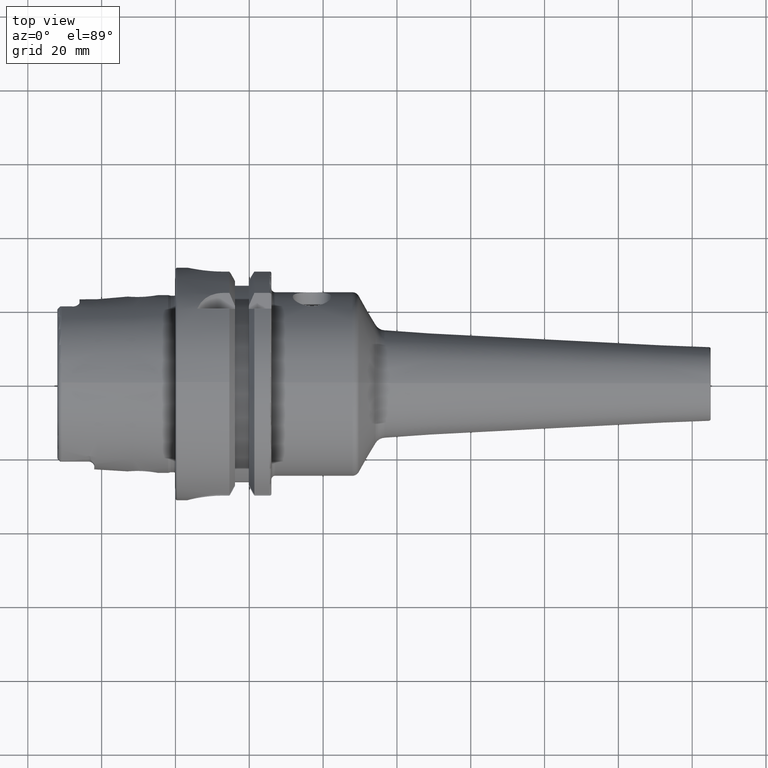
[diagram: clean part render]
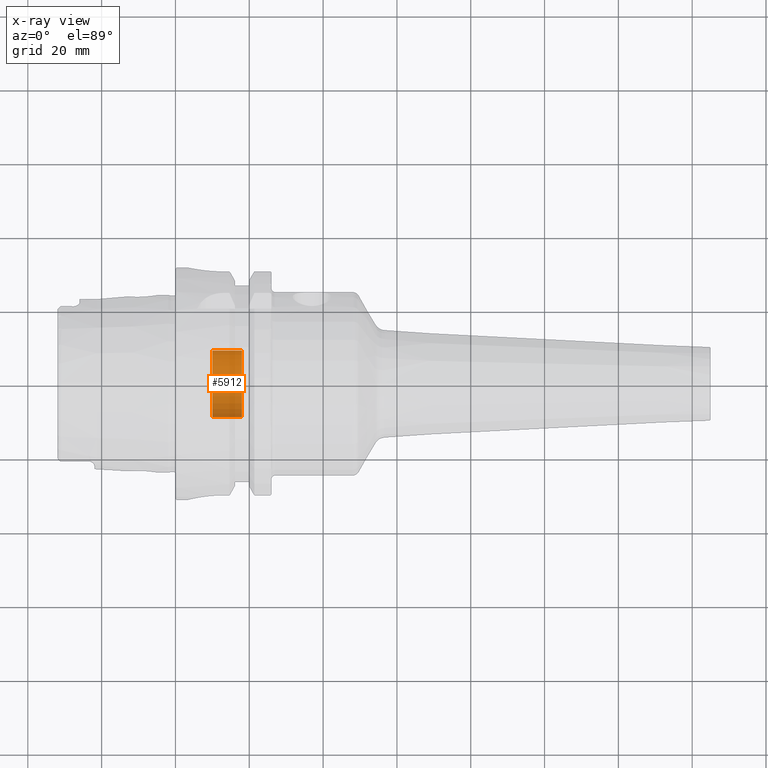
[diagram: x-ray — body ghosted, one internal face saturated and labeled with its STEP entity id]
A machine part, top view, then the same camera in x-ray: the body is ghosted and one INTERNAL B-rep face — a face not visible from any outside direction — is saturated and labeled: STEP entity #5912.
In plain terms, the highlighted cylindrical surface (edge-blend (fillet) strip) has radius 9 mm, axis along (-1, 0, 0).
Its self-contained STEP definition (entity closure, byte-faithful):
#5847=CARTESIAN_POINT('',(1.E1,0.E0,0.E0));
#5848=DIRECTION('',(1.E0,0.E0,0.E0));
#5849=DIRECTION('',(0.E0,-1.E0,0.E0));
#5850=AXIS2_PLACEMENT_3D('',#5847,#5848,#5849);
#5857=DIRECTION('',(1.E0,0.E0,0.E0));
#5858=VECTOR('',#5857,8.E0);
#5859=CARTESIAN_POINT('',(1.E1,-9.E0,0.E0));
#5860=LINE('',#5859,#5858);
#5861=DIRECTION('',(1.E0,0.E0,0.E0));
#5862=VECTOR('',#5861,8.E0);
#5863=CARTESIAN_POINT('',(1.E1,9.E0,0.E0));
#5864=LINE('',#5863,#5862);
#5870=CARTESIAN_POINT('',(1.8E1,0.E0,0.E0));
#5871=DIRECTION('',(-1.E0,0.E0,0.E0));
#5872=DIRECTION('',(0.E0,1.E0,0.E0));
#5873=AXIS2_PLACEMENT_3D('',#5870,#5871,#5872);
#5885=CARTESIAN_POINT('',(1.8E1,9.E0,0.E0));
#5886=CARTESIAN_POINT('',(1.8E1,-9.E0,0.E0));
#5887=VERTEX_POINT('',#5885);
#5888=VERTEX_POINT('',#5886);
#5889=CARTESIAN_POINT('',(1.E1,9.E0,0.E0));
#5890=CARTESIAN_POINT('',(1.E1,-9.E0,0.E0));
#5891=VERTEX_POINT('',#5889);
#5892=VERTEX_POINT('',#5890);
#5897=CARTESIAN_POINT('',(2.376268102482E1,0.E0,0.E0));
#5898=DIRECTION('',(-1.E0,0.E0,0.E0));
#5899=DIRECTION('',(0.E0,1.E0,0.E0));
#5900=AXIS2_PLACEMENT_3D('',#5897,#5898,#5899);
#5901=CYLINDRICAL_SURFACE('',#5900,9.E0);
#5903=ORIENTED_EDGE('',*,*,#5902,.T.);
#5905=ORIENTED_EDGE('',*,*,#5904,.T.);
#5907=ORIENTED_EDGE('',*,*,#5906,.T.);
#5909=ORIENTED_EDGE('',*,*,#5908,.F.);
#5910=EDGE_LOOP('',(#5903,#5905,#5907,#5909));
#5911=FACE_OUTER_BOUND('',#5910,.F.);
#5912=ADVANCED_FACE('',(#5911),#5901,.F.);
#5851=CIRCLE('',#5850,9.E0);
#5874=CIRCLE('',#5873,9.E0);
#5902=EDGE_CURVE('',#5892,#5891,#5851,.T.);
#5904=EDGE_CURVE('',#5891,#5887,#5864,.T.);
#5906=EDGE_CURVE('',#5887,#5888,#5874,.T.);
#5908=EDGE_CURVE('',#5892,#5888,#5860,.T.);